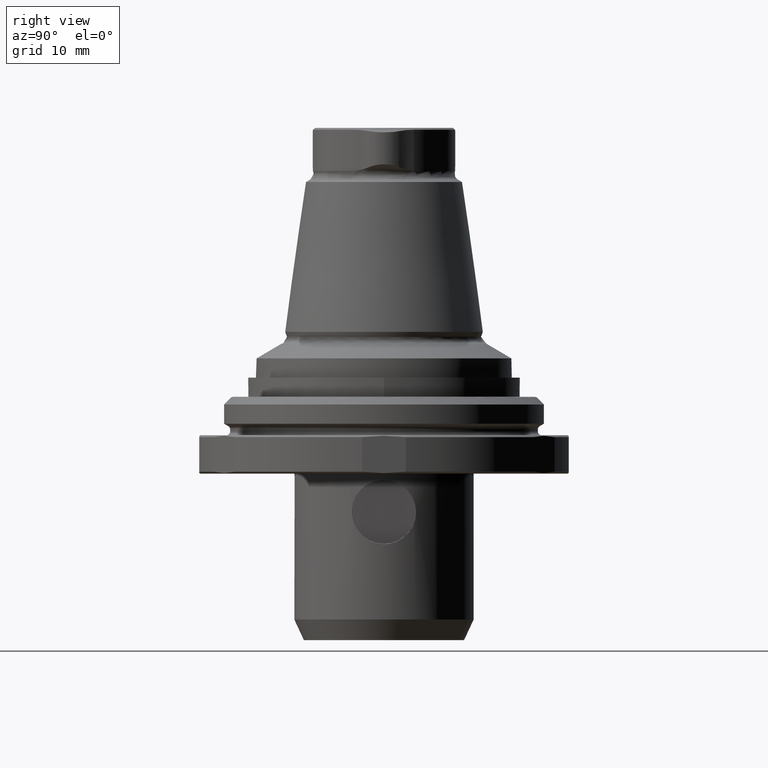
[diagram: clean part render]
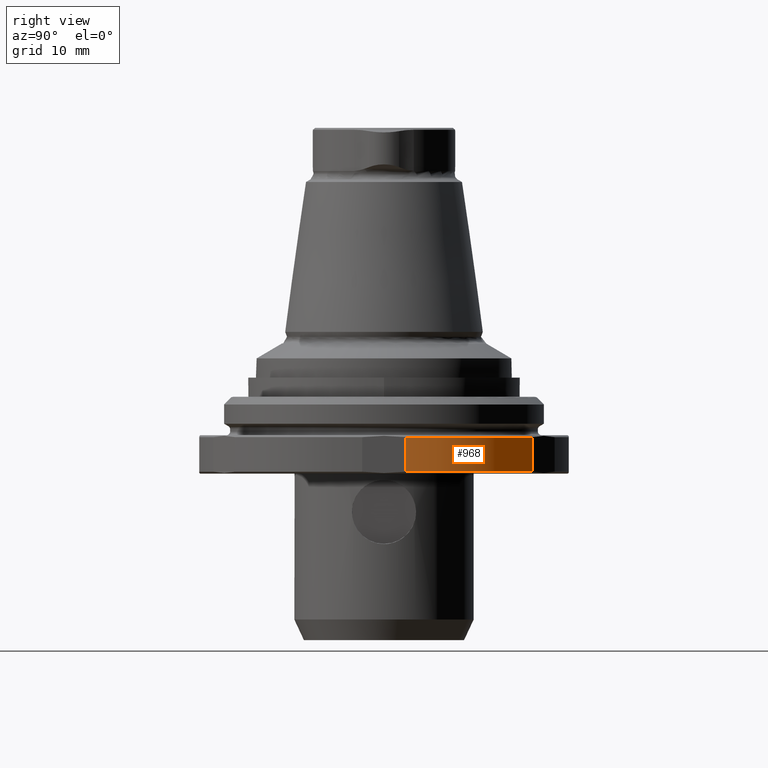
[diagram: same view with one face highlighted and labeled with its STEP entity id]
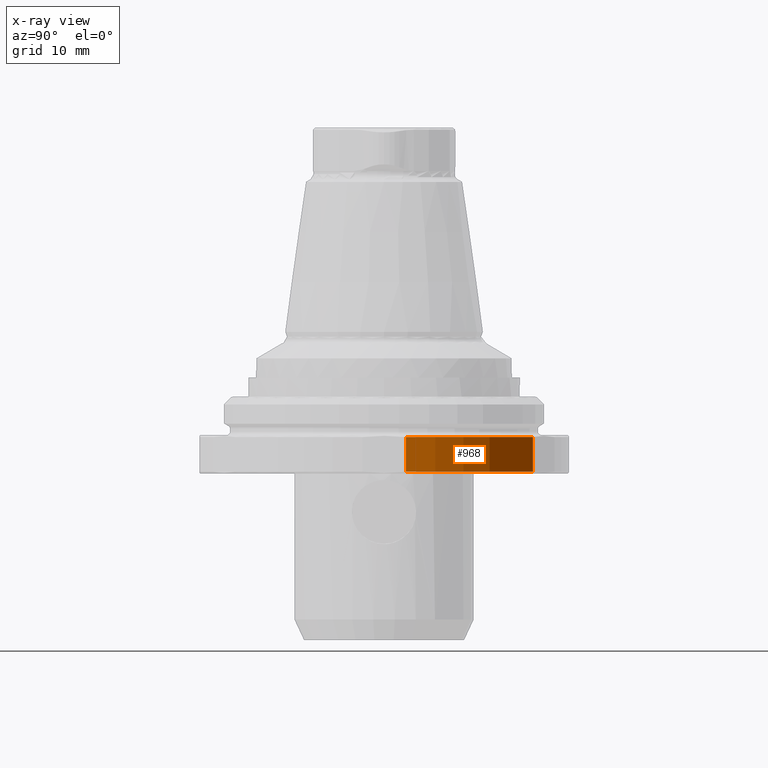
[diagram: x-ray of the same camera — body ghosted, the highlighted face saturated]
A machine part, right view. The second image highlights one B-rep face of the part: STEP entity #968.
The next image is the same camera in x-ray: the body ghosted, the highlighted face saturated — about 0% of this face is hidden behind the body in this view.
In plain terms, the highlighted cylindrical surface (partial cylindrical patch) has radius 29 mm, axis along (-0, -0, -1).
Its self-contained STEP definition (entity closure, byte-faithful):
#65=LINE('',#1801,#93);
#66=LINE('',#1805,#94);
#93=VECTOR('',#1342,1000.);
#94=VECTOR('',#1347,1000.);
#156=CIRCLE('',#1078,29.);
#162=CIRCLE('',#1096,29.);
#371=ORIENTED_EDGE('',*,*,#537,.F.);
#372=ORIENTED_EDGE('',*,*,#538,.T.);
#373=ORIENTED_EDGE('',*,*,#512,.T.);
#374=ORIENTED_EDGE('',*,*,#536,.T.);
#512=EDGE_CURVE('',#622,#621,#156,.T.);
#536=EDGE_CURVE('',#621,#634,#65,.T.);
#537=EDGE_CURVE('',#635,#634,#162,.T.);
#538=EDGE_CURVE('',#635,#622,#66,.F.);
#621=VERTEX_POINT('',#1731);
#622=VERTEX_POINT('',#1733);
#634=VERTEX_POINT('',#1800);
#635=VERTEX_POINT('',#1804);
#763=EDGE_LOOP('',(#371,#372,#373,#374));
#863=FACE_BOUND('',#763,.T.);
#911=CYLINDRICAL_SURFACE('',#1095,29.);
#968=ADVANCED_FACE('',(#863),#911,.T.);
#1078=AXIS2_PLACEMENT_3D('',#1732,#1297,#1298);
#1095=AXIS2_PLACEMENT_3D('',#1802,#1343,#1344);
#1096=AXIS2_PLACEMENT_3D('',#1803,#1345,#1346);
#1297=DIRECTION('',(-5.20001084984554E-33,-4.76419527885826E-18,-1.));
#1298=DIRECTION('',(-1.,0.,0.));
#1342=DIRECTION('',(-5.20001084984554E-33,-4.76419527885826E-18,-1.));
#1343=DIRECTION('',(-5.20001084984554E-33,-4.76419527885826E-18,-1.));
#1344=DIRECTION('',(-1.,0.,0.));
#1345=DIRECTION('',(-5.20001084984554E-33,-4.76419527885826E-18,-1.));
#1346=DIRECTION('',(-1.,0.,0.));
#1347=DIRECTION('',(-5.20001084984554E-33,-4.76419527885826E-18,-1.));
#1731=CARTESIAN_POINT('',(28.8,3.39999999999998,-1.3));
#1732=CARTESIAN_POINT('',(-1.56000325495366E-33,-1.42925858365748E-18,-1.3));
#1733=CARTESIAN_POINT('',(17.3444863728671,23.2415316289919,-1.3));
#1800=CARTESIAN_POINT('',(28.8,3.39999999999998,-6.7));
#1801=CARTESIAN_POINT('',(28.8,3.39999999999998,-1.));
#1802=CARTESIAN_POINT('',(0.,0.,-1.));
#1803=CARTESIAN_POINT('',(-2.96400618441196E-32,-2.7155913089492E-17,-6.7));
#1804=CARTESIAN_POINT('',(17.3444863728671,23.2415316289919,-6.7));
#1805=CARTESIAN_POINT('',(17.3444863728671,23.2415316289919,-1.));